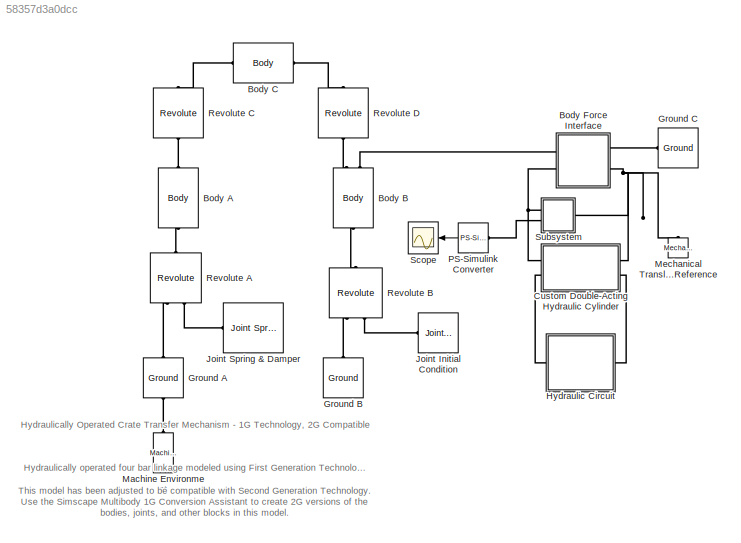
MODEL slx_58357d3a0dcc
KIND model
CONFIG AbsTol = auto
CONFIG FixedStep = auto
CONFIG MaxStep = auto
CONFIG MinStep = auto
CONFIG PostLoadFcn = mech_crate_transfer_param\n
CONFIG RelTol = 1e-3
CONFIG SampleTimeConstraint = Unconstrained
CONFIG Solver = ode15s
CONFIG SolverMode = Auto
CONFIG SolverName = ode15s
CONFIG StartTime = 0.0
CONFIG StopTime = 10.0
WORKSPACE source: MAT-file member
WORKSPACE A_a = 0.05
WORKSPACE A_c = 0.05
BLOCK [Reference] Body A  REF=mblibv1/Bodies/Body
  AttachedToCS = CG
  BodyColor = [1 0 0]
  BodyColorSelMode = MACHINE_DEFAULT
  CG = Left$CG$[0 A_b 0]$CS1$CS1$m$[0 0 0]$Euler X-Y-Z$deg$CS1$false$none
  CGPos = [0 A_b 0]
  CGRot = [0 0 0]
  CS0Pos = []
  CS0Rot = []
  CS10Pos = []
  CS10Rot = []
  CS11Pos = []
  CS11Rot = []
  CS12Pos = []
  CS12Rot = []
  CS13Pos = []
  CS13Rot = []
  CS14Pos = []
  CS14Rot = []
  CS15Pos = []
  CS15Rot = []
  CS16Pos = []
  CS16Rot = []
  CS17Pos = []
  CS17Rot = []
  CS18Pos = []
  CS18Rot = []
  CS19Pos = []
  CS19Rot = []
  CS1Pos = [0 0 0]
  CS1Rot = [0 0 0]
  CS20Pos = []
  CS20Rot = []
  CS2Pos = [0 2*A_b 0]
  CS2Rot = [0 0 0]
  CS3Pos = []
  CS3Rot = []
  CS4Pos = []
  CS4Rot = []
  CS5Pos = []
  CS5Rot = []
  CS6Pos = []
  CS6Rot = []
  CS7Pos = []
  CS7Rot = []
  CS8Pos = []
  CS8Rot = []
  CS9Pos = []
  CS9Rot = []
  ClassName = Body
  Density = 1
  DensityUnits = kg/m^3
  DensityUse = false
  DialogClass = MechanicalBodyBlock
  GraphicsMode = MACHINE_DEFAULT
  Inertia = I_a
  InertiaUnits = kg*m^2
  LConnTagsString = CS1
  Mass = M_a
  MassUnits = kg
  Ports = [0, 0, 0, 0, 0, 1, 1]
  RConnTagsString = CS2
  Shape = Cylinder
  ShapeDims = [1 1]
  ShapeUnits = m
  ShapeUse = false
  SourceBlock = mblibv1/Bodies/Body
  SourceType = Body
  UpdateFromCAD = off
  WorkingFrames = Left$CS1$[0 0 0]$Adjoining$Adjoining$m$[0 0 0]$Euler X-Y-Z$deg$Adjoining$true$none#Right$CS2$[0 2*A_b 0]$CS1$CS1$m$[0 0 0]$Euler X-Y-Z$deg$CS1$true$none
BLOCK [Reference] Body B  REF=mblibv1/Bodies/Body
  AttachedToCS = CG
  BodyColor = [1 0 0]
  BodyColorSelMode = MACHINE_DEFAULT
  CG = Left$CG$[0 A_b 0]$CS1$CS1$m$[0 0 0]$Euler X-Y-Z$deg$CS1$false$none
  CGPos = [0 A_b 0]
  CGRot = [0 0 0]
  CS0Pos = []
  CS0Rot = []
  CS10Pos = []
  CS10Rot = []
  CS11Pos = []
  CS11Rot = []
  CS12Pos = []
  CS12Rot = []
  CS13Pos = []
  CS13Rot = []
  CS14Pos = []
  CS14Rot = []
  CS15Pos = []
  CS15Rot = []
  CS16Pos = []
  CS16Rot = []
  CS17Pos = []
  CS17Rot = []
  CS18Pos = []
  CS18Rot = []
  CS19Pos = []
  CS19Rot = []
  CS1Pos = [0 0 0]
  CS1Rot = [0 0 0]
  CS20Pos = []
  CS20Rot = []
  CS2Pos = [0 2*A_b 0]
  CS2Rot = [0 0 0]
  CS3Pos = [0 0 0]
  CS3Rot = [0 0 0]
  CS4Pos = []
  CS4Rot = []
  CS5Pos = []
  CS5Rot = []
  CS6Pos = []
  CS6Rot = []
  CS7Pos = []
  CS7Rot = []
  CS8Pos = []
  CS8Rot = []
  CS9Pos = []
  CS9Rot = []
  ClassName = Body
  Density = 1
  DensityUnits = kg/m^3
  DensityUse = false
  DialogClass = MechanicalBodyBlock
  GraphicsMode = MACHINE_DEFAULT
  Inertia = I_a
  InertiaUnits = kg*m^2
  LConnTagsString = CS1
  Mass = M_a
  MassUnits = kg
  Ports = [0, 0, 0, 0, 0, 1, 2]
  RConnTagsString = CS2|CS3
  Shape = Cylinder
  ShapeDims = [1 1]
  ShapeUnits = m
  ShapeUse = false
  SourceBlock = mblibv1/Bodies/Body
  SourceType = Body
  UpdateFromCAD = off
  WorkingFrames = Left$CS1$[0 0 0]$Adjoining$Adjoining$m$[0 0 0]$Euler X-Y-Z$deg$Adjoining$true$none#Right$CS2$[0 2*A_b 0]$CS1$CS1$m$[0 0 0]$Euler X-Y-Z$deg$CS1$true$none#Right$CS3$[0 0 0]$CG$CG$m$[0 0 0]$Euler X-Y-Z$deg$CG$true$none
BLOCK [Reference] Body C  REF=mblibv1/Bodies/Body
  AttachedToCS = CG
  BodyColor = [1 0 0]
  BodyColorSelMode = MACHINE_DEFAULT
  CG = Left$CG$[C_a 0 0]$CS1$CS1$m$[0 0 0]$Euler X-Y-Z$deg$CS1$false$none
  CGPos = [C_a 0 0]
  CGRot = [0 0 0]
  CS0Pos = []
  CS0Rot = []
  CS10Pos = []
  CS10Rot = []
  CS11Pos = []
  CS11Rot = []
  CS12Pos = []
  CS12Rot = []
  CS13Pos = []
  CS13Rot = []
  CS14Pos = []
  CS14Rot = []
  CS15Pos = []
  CS15Rot = []
  CS16Pos = []
  CS16Rot = []
  CS17Pos = []
  CS17Rot = []
  CS18Pos = []
  CS18Rot = []
  CS19Pos = []
  CS19Rot = []
  CS1Pos = [0 0 0]
  CS1Rot = [0 0 0]
  CS20Pos = []
  CS20Rot = []
  CS2Pos = [2*C_a 0 0]
  CS2Rot = [0 0 0]
  CS3Pos = []
  CS3Rot = []
  CS4Pos = []
  CS4Rot = []
  CS5Pos = []
  CS5Rot = []
  CS6Pos = []
  CS6Rot = []
  CS7Pos = []
  CS7Rot = []
  CS8Pos = []
  CS8Rot = []
  CS9Pos = []
  CS9Rot = []
  ClassName = Body
  Density = 1
  DensityUnits = kg/m^3
  DensityUse = false
  DialogClass = MechanicalBodyBlock
  GraphicsMode = MACHINE_DEFAULT
  Inertia = I_c
  InertiaUnits = kg*m^2
  LConnTagsString = CS1
  Mass = M_c
  MassUnits = kg
  Ports = [0, 0, 0, 0, 0, 1, 1]
  RConnTagsString = CS2
  Shape = Cylinder
  ShapeDims = [1 1]
  ShapeUnits = m
  ShapeUse = false
  SourceBlock = mblibv1/Bodies/Body
  SourceType = Body
  UpdateFromCAD = off
  WorkingFrames = Left$CS1$[0 0 0]$Adjoining$Adjoining$m$[0 0 0]$Euler X-Y-Z$deg$Adjoining$true$none#Right$CS2$[2*C_a 0 0]$CS1$CS1$m$[0 0 0]$Euler X-Y-Z$deg$CS1$true$none
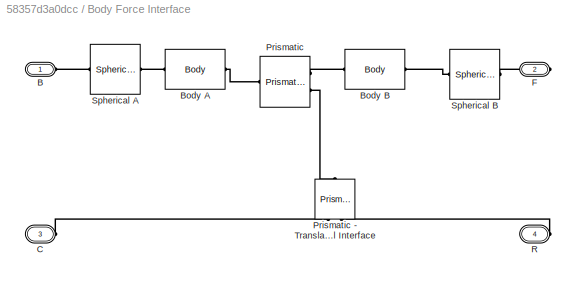
BLOCK [SubSystem] Body Force Interface
  FunctionWithSeparateData = off
  MaskHideContents = off
  MinAlgLoopOccurrences = off
  Opaque = off
  Ports = [0, 0, 0, 0, 0, 2, 2]
  PropExecContextOutsideSubsystem = off
  RTWSystemCode = Auto
  RequestExecContextInheritance = off
BLOCK [PMIOPort] Body Force Interface/B
  Port = 1
  Side = Left
BLOCK [Reference] Body Force Interface/Body A  REF=mblibv1/Bodies/Body
  AttachedToCS = CG
  BodyColor = [1 0 0]
  BodyColorSelMode = MACHINE_DEFAULT
  CG = Left$CG$[sqrt(2)*0.5/2 0 0]$CS1$CS1$m$[0 0 0]$Euler X-Y-Z$deg$CS1$false$none
  CGPos = [sqrt(2)*0.5/2 0 0]
  CGRot = [0 0 0]
  CS0Pos = []
  CS0Rot = []
  CS10Pos = []
  CS10Rot = []
  CS11Pos = []
  CS11Rot = []
  CS12Pos = []
  CS12Rot = []
  CS13Pos = []
  CS13Rot = []
  CS14Pos = []
  CS14Rot = []
  CS15Pos = []
  CS15Rot = []
  CS16Pos = []
  CS16Rot = []
  CS17Pos = []
  CS17Rot = []
  CS18Pos = []
  CS18Rot = []
  CS19Pos = []
  CS19Rot = []
  CS1Pos = [0 0 0]
  CS1Rot = [0 0 45]
  CS20Pos = []
  CS20Rot = []
  CS2Pos = [sqrt(2)*0.5 0 0]
  CS2Rot = [0 90 0]
  CS3Pos = []
  CS3Rot = []
  CS4Pos = []
  CS4Rot = []
  CS5Pos = []
  CS5Rot = []
  CS6Pos = []
  CS6Rot = []
  CS7Pos = []
  CS7Rot = []
  CS8Pos = []
  CS8Rot = []
  CS9Pos = []
  CS9Rot = []
  ClassName = Body
  Density = 1
  DensityUnits = kg/m^3
  DensityUse = false
  DialogClass = MechanicalBodyBlock
  GraphicsMode = MACHINE_DEFAULT
  Inertia = 1e-3*[0.1 0 0;0 3 0; 0 0 3]
  InertiaUnits = kg*m^2
  LConnTagsString = CS1
  Mass = 0.1
  MassUnits = kg
  Ports = [0, 0, 0, 0, 0, 1, 1]
  RConnTagsString = CS2
  Shape = Cylinder
  ShapeDims = [1 1]
  ShapeUnits = m
  ShapeUse = false
  SourceBlock = mblibv1/Bodies/Body
  SourceType = Body
  UpdateFromCAD = off
  WorkingFrames = Left$CS1$[0 0 0]$Adjoining$Adjoining$m$[0 0 45]$Euler X-Y-Z$deg$Adjoining$true$none#Right$CS2$[sqrt(2)*0.5 0 0]$CS1$CS1$m$[0 90 0]$Euler X-Y-Z$deg$CS1$true$none
BLOCK [Reference] Body Force Interface/Body B  REF=mblibv1/Bodies/Body
  AttachedToCS = CG
  BodyColor = [1 0 0]
  BodyColorSelMode = MACHINE_DEFAULT
  CG = Left$CG$[0 0 sqrt(2)*0.5/2]$CS1$CS1$m$[0 -90 0]$Euler X-Y-Z$deg$CS1$false$none
  CGPos = [0 0 sqrt(2)*0.5/2]
  CGRot = [0 -90 0]
  CS0Pos = []
  CS0Rot = []
  CS10Pos = []
  CS10Rot = []
  CS11Pos = []
  CS11Rot = []
  CS12Pos = []
  CS12Rot = []
  CS13Pos = []
  CS13Rot = []
  CS14Pos = []
  CS14Rot = []
  CS15Pos = []
  CS15Rot = []
  CS16Pos = []
  CS16Rot = []
  CS17Pos = []
  CS17Rot = []
  CS18Pos = []
  CS18Rot = []
  CS19Pos = []
  CS19Rot = []
  CS1Pos = [0 0 -sqrt(2)*0.5]
  CS1Rot = [0 0 0]
  CS20Pos = []
  CS20Rot = []
  CS2Pos = [0 0 sqrt(2)*0.5]
  CS2Rot = [0 -90 0]
  CS3Pos = []
  CS3Rot = []
  CS4Pos = []
  CS4Rot = []
  CS5Pos = []
  CS5Rot = []
  CS6Pos = []
  CS6Rot = []
  CS7Pos = []
  CS7Rot = []
  CS8Pos = []
  CS8Rot = []
  CS9Pos = []
  CS9Rot = []
  ClassName = Body
  Density = 1
  DensityUnits = kg/m^3
  DensityUse = false
  DialogClass = MechanicalBodyBlock
  GraphicsMode = MACHINE_DEFAULT
  Inertia = 1e-3*[0.1 0 0;0 3 0; 0 0 3]
  InertiaUnits = kg*m^2
  LConnTagsString = CS1
  Mass = 0.1
  MassUnits = kg
  Ports = [0, 0, 0, 0, 0, 1, 1]
  RConnTagsString = CS2
  Shape = Cylinder
  ShapeDims = [1 1]
  ShapeUnits = m
  ShapeUse = false
  SourceBlock = mblibv1/Bodies/Body
  SourceType = Body
  UpdateFromCAD = off
  WorkingFrames = Left$CS1$[0 0 -sqrt(2)*0.5]$Adjoining$Adjoining$m$[0 0 0]$Euler X-Y-Z$deg$Adjoining$true$none#Right$CS2$[0 0 sqrt(2)*0.5]$CS1$CS1$m$[0 -90 0]$Euler X-Y-Z$deg$CS1$true$none
BLOCK [PMIOPort] Body Force Interface/C
  Port = 3
  Side = Left
BLOCK [PMIOPort] Body Force Interface/F
  Port = 2
  Side = Right
BLOCK [Reference] Body Force Interface/Prismatic  REF=mblibv1/Joints/Prismatic
  ClassName = Joint
  CutJoint = off
  DialogClass = JointBlock
  LConnTagsString = __newl0|SA1
  MarkAsCut = off
  NumSAPorts = 1
  P1Axis = [0 0 1]
  Ports = [0, 0, 0, 0, 0, 2, 1]
  PrimitiveProps = P1$Base$[0 0 1]$prismatic
  Primitives = prismatic
  RConnTagsString = __newr0
  SourceBlock = mblibv1/Joints/Prismatic
  SourceType = Prismatic
  UpdateFromCAD = off
BLOCK [Reference] Body Force Interface/Prismatic - Translational Interface  REF=mblibv1/Interface 
Elements/Prismatic -
Translational
Interface
  ClassName = PrismaticTranslationalInterface
  DialogClass = PrismaticTranslationalInterface
  InputFilterTimeConstant = 0.001
  InputFiltering = off
  Ports = [0, 0, 0, 0, 0, 2, 1]
  Primitive = P1
  SimscapeFilterOrder = 1
  SourceBlock = mblibv1/Interface \nElements/Prismatic -\nTranslational\nInterface
  SourceType = Prismatic - Translational Interface
  UpdateFromCAD = off
BLOCK [PMIOPort] Body Force Interface/R
  Port = 4
  Side = Right
BLOCK [Reference] Body Force Interface/Spherical A   REF=mblibv1/Joints/Spherical
  ClassName = Joint
  CutJoint = off
  DialogClass = JointBlock
  LConnTagsString = __newl0
  MarkAsCut = off
  NumSAPorts = 0
  Ports = [0, 0, 0, 0, 0, 1, 1]
  PrimitiveProps = S$WORLD$[0 0 0]$spherical
  Primitives = spherical
  RConnTagsString = __newr0
  SAxis = [0 0 0]
  SourceBlock = mblibv1/Joints/Spherical
  SourceType = Spherical
  UpdateFromCAD = off
BLOCK [Reference] Body Force Interface/Spherical B  REF=mblibv1/Joints/Spherical
  ClassName = Joint
  CutJoint = off
  DialogClass = JointBlock
  LConnTagsString = __newl0
  MarkAsCut = off
  NumSAPorts = 0
  Ports = [0, 0, 0, 0, 0, 1, 1]
  PrimitiveProps = S$World$[0 0 0]$spherical
  Primitives = spherical
  RConnTagsString = __newr0
  SAxis = [0 0 0]
  SourceBlock = mblibv1/Joints/Spherical
  SourceType = Spherical
  UpdateFromCAD = off
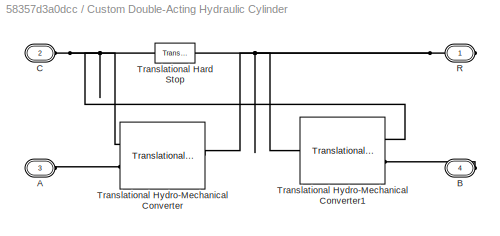
BLOCK [SubSystem] Custom Double-Acting Hydraulic Cylinder
  FunctionWithSeparateData = off
  MaskHideContents = off
  MinAlgLoopOccurrences = off
  Opaque = off
  Ports = [0, 0, 0, 0, 0, 2, 2]
  PropExecContextOutsideSubsystem = off
  RTWSystemCode = Auto
  RequestExecContextInheritance = off
BLOCK [PMIOPort] Custom Double-Acting Hydraulic Cylinder/A
  Port = 3
  Side = Left
  Tag = PMCPort
BLOCK [PMIOPort] Custom Double-Acting Hydraulic Cylinder/B
  Port = 4
  Side = Right
  Tag = PMCPort
BLOCK [PMIOPort] Custom Double-Acting Hydraulic Cylinder/C
  Port = 2
  Side = Left
  Tag = PMCPort
BLOCK [PMIOPort] Custom Double-Acting Hydraulic Cylinder/R
  Port = 1
  Side = Right
  Tag = PMCPort
BLOCK [Reference] Custom Double-Acting Hydraulic Cylinder/Translational Hard Stop  REF=fl_lib/Mechanical/Translational
Elements/Translational Hard
Stop
  ClassName = hardstop_transl
  ComponentPath = foundation.mechanical.translational.hardstop
  ComponentVariantNames = hardstop
  ComponentVariants = foundation.mechanical.translational.hardstop
  D_low = damping
  D_low_unit = N/(m/s)
  D_up = damping
  D_up_unit = N/(m/s)
  LocalVarDescs = |f|v|x
  LocalVarLogging = [0 0 0]
  LocalVarNames = |f|v|x
  Ports = [0, 0, 0, 0, 0, 1, 1]
  SchemaVersion = 1
  SourceBlock = fl_lib/Mechanical/Translational\nElements/Translational Hard\nStop
  SourceFile = foundation.mechanical.translational.hardstop
  SourceType = Translational Hard\nStop
  f_Log = off
  initial_position = 0
  initial_position_unit = m
  lower_bnd = -init_pos
  lower_bnd_unit = m
  stiff_low = stiffness
  stiff_low_unit = N/m
  stiff_up = stiffness
  stiff_up_unit = N/m
  upper_bnd = stroke - init_pos
  upper_bnd_unit = m
  v_Log = off
  x_Log = off
BLOCK [Reference] Custom Double-Acting Hydraulic Cylinder/Translational Hydro-Mechanical Converter  REF=fl_lib/Hydraulic/Hydraulic Elements/Translational
Hydro-Mechanical
Converter
  ClassName = converter_transl
  ComponentPath = foundation.hydraulic.elements.translational_converter
  ComponentVariantNames = translational_converter
  ComponentVariants = foundation.hydraulic.elements.translational_converter
  LocalVarDescs = |f|q
  LocalVarLogging = [0 0]
  LocalVarNames = |f|q
  Ports = [0, 0, 0, 0, 0, 2, 1]
  SchemaVersion = 1
  SourceBlock = fl_lib/Hydraulic/Hydraulic Elements/Translational\nHydro-Mechanical\nConverter
  SourceFile = foundation.hydraulic.elements.translational_converter
  SourceType = Translational\nHydro-Mechanical\nConverter
  area = area_A
  area_unit = m^2
  dir = 1
  dir_unit = 1
  f_Log = off
  or = 1
  or_unit = 1
  q_Log = off
BLOCK [Reference] Custom Double-Acting Hydraulic Cylinder/Translational Hydro-Mechanical Converter1  REF=fl_lib/Hydraulic/Hydraulic Elements/Translational
Hydro-Mechanical
Converter
  ClassName = converter_transl
  ComponentPath = foundation.hydraulic.elements.translational_converter
  ComponentVariantNames = translational_converter
  ComponentVariants = foundation.hydraulic.elements.translational_converter
  LocalVarDescs = |f|q
  LocalVarLogging = [0 0]
  LocalVarNames = |f|q
  Ports = [0, 0, 0, 0, 0, 2, 1]
  SchemaVersion = 1
  SourceBlock = fl_lib/Hydraulic/Hydraulic Elements/Translational\nHydro-Mechanical\nConverter
  SourceFile = foundation.hydraulic.elements.translational_converter
  SourceType = Translational\nHydro-Mechanical\nConverter
  area = area_B
  area_unit = m^2
  dir = 1
  dir_unit = 1
  f_Log = off
  or = 2
  or_unit = 1
  q_Log = off
BLOCK [Reference] Ground A  REF=mblibv1/Bodies/Ground
  ClassName = Ground
  CoordPosition = [0 0 0]
  CoordPositionUnits = m
  DialogClass = GroundBlock
  LeftPortType = env
  MachineId = [1 0]
  ParameterChecksum = [1233882596, 2623182338, 1763440866, 3461614737]
  PhysicalDomain = Mechanical
  Ports = [0, 0, 0, 0, 0, 1, 1]
  RightPortType = workingframe
  ShowEnvPort = on
  SourceBlock = mblibv1/Bodies/Ground
  SourceType = Ground
  StateVectorMgrId = 0
  TopologyChecksum = [903116939, 3767858018, 2363969463, 2006729119]
  UpdateFromCAD = off
  UserDataPersistent = on
BLOCK [Reference] Ground B  REF=mblibv1/Bodies/Ground
  ClassName = Ground
  CoordPosition = [0.5 0 0]
  CoordPositionUnits = m
  DialogClass = GroundBlock
  LeftPortType = env
  MachineId = [0 0]
  ParameterChecksum = [0 0 0 0]
  PhysicalDomain = Mechanical
  Ports = [0, 0, 0, 0, 0, 0, 1]
  RightPortType = workingframe
  ShowEnvPort = off
  SourceBlock = mblibv1/Bodies/Ground
  SourceType = Ground
  StateVectorMgrId = -1
  TopologyChecksum = [0 0 0 0]
  UpdateFromCAD = off
  UserDataPersistent = on
BLOCK [Reference] Ground C  REF=mblibv1/Bodies/Ground
  ClassName = Ground
  CoordPosition = [1 1 0]
  CoordPositionUnits = m
  DialogClass = GroundBlock
  LeftPortType = env
  MachineId = [0 0]
  ParameterChecksum = [0 0 0 0]
  PhysicalDomain = Mechanical
  Ports = [0, 0, 0, 0, 0, 0, 1]
  RightPortType = workingframe
  ShowEnvPort = off
  SourceBlock = mblibv1/Bodies/Ground
  SourceType = Ground
  StateVectorMgrId = -1
  TopologyChecksum = [0 0 0 0]
  UpdateFromCAD = off
  UserDataPersistent = on
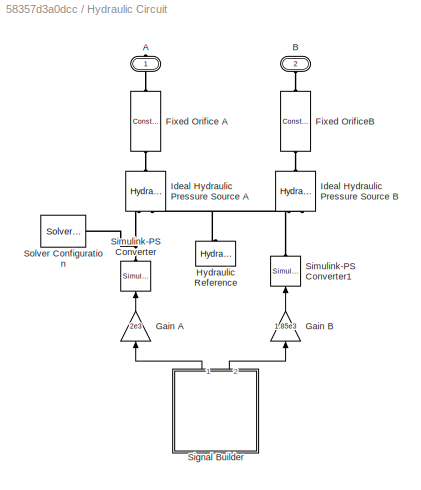
BLOCK [SubSystem] Hydraulic Circuit
  FunctionWithSeparateData = off
  MaskHideContents = off
  MinAlgLoopOccurrences = off
  Opaque = off
  Ports = [0, 0, 0, 0, 0, 1, 1]
  PropExecContextOutsideSubsystem = off
  RTWSystemCode = Auto
  RequestExecContextInheritance = off
BLOCK [PMIOPort] Hydraulic Circuit/A
  Port = 1
  Side = Right
BLOCK [PMIOPort] Hydraulic Circuit/B
  Port = 2
  Side = Left
BLOCK [Reference] Hydraulic Circuit/Fixed Orifice A  REF=fl_lib/Hydraulic/Hydraulic Elements/Constant Area
Hydraulic Orifice
  C_d = 0.7
  C_d_unit = 1
  ClassName = orifice_fixed
  ComponentPath = foundation.hydraulic.elements.constant_area_orifice
  ComponentVariantNames = constant_area_orifice
  ComponentVariants = foundation.hydraulic.elements.constant_area_orifice
  D_h = 0.0113
  D_h_unit = m
  LocalVarDescs = |q|p
  LocalVarLogging = [0 0]
  LocalVarNames = |q|p
  Ports = [0, 0, 0, 0, 0, 1, 1]
  Re_cr = 12
  Re_cr_unit = 1
  SchemaVersion = 1
  SourceBlock = fl_lib/Hydraulic/Hydraulic Elements/Constant Area\nHydraulic Orifice
  SourceFile = foundation.hydraulic.elements.constant_area_orifice
  SourceType = Constant Area\nHydraulic Orifice
  area = 1e-04
  area_unit = m^2
  p_Log = off
  q_Log = off
BLOCK [Reference] Hydraulic Circuit/Fixed OrificeB  REF=fl_lib/Hydraulic/Hydraulic Elements/Constant Area
Hydraulic Orifice
  C_d = 0.7
  C_d_unit = 1
  ClassName = orifice_fixed
  ComponentPath = foundation.hydraulic.elements.constant_area_orifice
  ComponentVariantNames = constant_area_orifice
  ComponentVariants = foundation.hydraulic.elements.constant_area_orifice
  D_h = 0.0113
  D_h_unit = m
  LocalVarDescs = |q|p
  LocalVarLogging = [0 0]
  LocalVarNames = |q|p
  Ports = [0, 0, 0, 0, 0, 1, 1]
  Re_cr = 12
  Re_cr_unit = 1
  SchemaVersion = 1
  SourceBlock = fl_lib/Hydraulic/Hydraulic Elements/Constant Area\nHydraulic Orifice
  SourceFile = foundation.hydraulic.elements.constant_area_orifice
  SourceType = Constant Area\nHydraulic Orifice
  area = 1e-04
  area_unit = m^2
  p_Log = off
  q_Log = off
BLOCK [Gain] Hydraulic Circuit/Gain A
  Gain = 2e3
  OutDataTypeStr = Inherit: Inherit via internal rule
  ParamDataTypeStr = Inherit: Inherit via internal rule
  SaturateOnIntegerOverflow = off
BLOCK [Gain] Hydraulic Circuit/Gain B
  Gain = 1.85e3
  OutDataTypeStr = Inherit: Inherit via internal rule
  ParamDataTypeStr = Inherit: Inherit via internal rule
  SaturateOnIntegerOverflow = off
BLOCK [Reference] Hydraulic Circuit/Hydraulic Reference  REF=fl_lib/Hydraulic/Hydraulic Elements/Hydraulic Reference
  ClassName = hydro_reference
  ComponentPath = foundation.hydraulic.elements.reference
  ComponentVariantNames = reference
  ComponentVariants = foundation.hydraulic.elements.reference
  LocalVarDescs = |q
  LocalVarLogging = 0
  LocalVarNames = |q
  Ports = [0, 0, 0, 0, 0, 1]
  SchemaVersion = 1
  SourceBlock = fl_lib/Hydraulic/Hydraulic Elements/Hydraulic Reference
  SourceFile = foundation.hydraulic.elements.reference
  SourceType = Hydraulic Reference
  q_Log = off
BLOCK [Reference] Hydraulic Circuit/Ideal Hydraulic Pressure Source A  REF=fl_lib/Hydraulic/Hydraulic Sources/Hydraulic Pressure
Source
  ClassName = pressure_src
  ComponentPath = foundation.hydraulic.sources.pressure
  ComponentVariantNames = pressure
  ComponentVariants = foundation.hydraulic.sources.pressure
  LocalVarDescs = |q|p
  LocalVarLogging = [0 0]
  LocalVarNames = |q|p
  Ports = [0, 0, 0, 0, 0, 1, 2]
  SchemaVersion = 1
  SourceBlock = fl_lib/Hydraulic/Hydraulic Sources/Hydraulic Pressure\nSource
  SourceFile = foundation.hydraulic.sources.pressure
  SourceType = Hydraulic Pressure\nSource
  p_Log = off
  q_Log = off
BLOCK [Reference] Hydraulic Circuit/Ideal Hydraulic Pressure Source B  REF=fl_lib/Hydraulic/Hydraulic Sources/Hydraulic Pressure
Source
  ClassName = pressure_src
  ComponentPath = foundation.hydraulic.sources.pressure
  ComponentVariantNames = pressure
  ComponentVariants = foundation.hydraulic.sources.pressure
  LocalVarDescs = |q|p
  LocalVarLogging = [0 0]
  LocalVarNames = |q|p
  Ports = [0, 0, 0, 0, 0, 1, 2]
  SchemaVersion = 1
  SourceBlock = fl_lib/Hydraulic/Hydraulic Sources/Hydraulic Pressure\nSource
  SourceFile = foundation.hydraulic.sources.pressure
  SourceType = Hydraulic Pressure\nSource
  p_Log = off
  q_Log = off
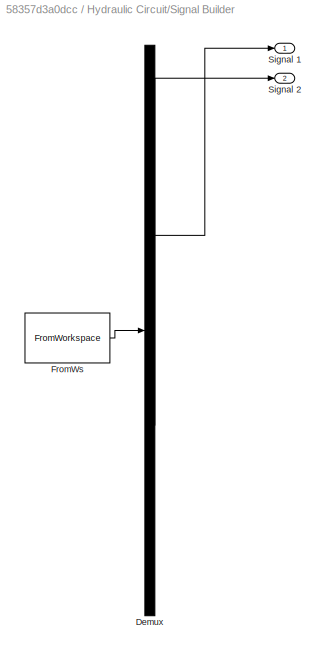
BLOCK [SubSystem] Hydraulic Circuit/Signal Builder
  ClipboardFcn = sigbuilder_block('clipboard');
  CloseFcn = sigbuilder_block('close');
  ContinueFcn = sigbuilder_block('continue')
  CopyFcn = sigbuilder_block('copy');
  DeleteFcn = sigbuilder_block('delete');
  FunctionWithSeparateData = off
  LoadFcn = sigbuilder_block('load');
  MaskHideContents = on
  MinAlgLoopOccurrences = off
  ModelCloseFcn = sigbuilder_block('modelClose');
  NameChangeFcn = sigbuilder_block('namechange');
  Opaque = off
  OpenFcn = sigbuilder_block('open',[388.5 359.25 550.5 371.25 ]);
  PauseFcn = sigbuilder_block('pause')
  Ports = [0, 2]
  PreSaveFcn = sigbuilder_block('preSave');
  PropExecContextOutsideSubsystem = off
  RTWSystemCode = Auto
  RequestExecContextInheritance = off
  StartFcn = sigbuilder_block('start');
  StopFcn = sigbuilder_block('stop');
  Tag = STV Subsys
BLOCK [Demux] Hydraulic Circuit/Signal Builder/Demux
  Outputs = 2
  Ports = [1, 2]
  Tag = STV Demux
BLOCK [FromWorkspace] Hydraulic Circuit/Signal Builder/FromWs
  SampleTime = 0
  Tag = STV FromWs
  VariableName = tuvar
  ZeroCross = on
BLOCK [Outport] Hydraulic Circuit/Signal Builder/Signal 1
  IconDisplay = Port number
  Tag = STV Outport
BLOCK [Outport] Hydraulic Circuit/Signal Builder/Signal 2
  IconDisplay = Port number
  Port = 2
  Tag = STV Outport
BLOCK [Reference] Hydraulic Circuit/Simulink-PS Converter  REF=nesl_utility/Simulink-PS
Converter
  AffineConversion = off
  Frequencies = []
  InputFilterTimeConstant = .001
  InputFiltering = off
  LeftPortType = input
  NoiseDistribution = none
  NoiseParameters = []
  PhysicalDomain = network_engine_domain
  Ports = [1, 0, 0, 0, 0, 0, 1]
  PseudoPeriodic = off
  RightPortType = output
  SimscapeFilterOrder = 1
  SourceBlock = nesl_utility/Simulink-PS\nConverter
  SourceType = Simulink-PS\nConverter
  SubClassName = ps_input
  UdotUserProvided = 0
  Unit = N/m^2
BLOCK [Reference] Hydraulic Circuit/Simulink-PS Converter1  REF=nesl_utility/Simulink-PS
Converter
  AffineConversion = off
  Frequencies = []
  InputFilterTimeConstant = .001
  InputFiltering = off
  LeftPortType = input
  NoiseDistribution = none
  NoiseParameters = []
  PhysicalDomain = network_engine_domain
  Ports = [1, 0, 0, 0, 0, 0, 1]
  PseudoPeriodic = off
  RightPortType = output
  SimscapeFilterOrder = 1
  SourceBlock = nesl_utility/Simulink-PS\nConverter
  SourceType = Simulink-PS\nConverter
  SubClassName = ps_input
  UdotUserProvided = 0
  Unit = N/m^2
BLOCK [Reference] Hydraulic Circuit/Solver Configuration  REF=nesl_utility/Solver
Configuration
  AbsTol = 1e-06
  Accelerate = off
  DelaysMemoryBudget = 1024
  DoDC = off
  DoFixedCost = off
  EnableSwitchedLinearOptims = on
  FrequencyDomain = off
  Harmonics = []
  LeftPortType = input
  LinearAlgebra = Sparse
  LocalSolverChoice = NE_BACKWARD_EULER_ADVANCER
  LocalSolverSampleTime = .001
  MaxModeIter = 2
  MaxNonlinIter = 12
  MinStep = 1e-09
  PhysicalDomain = network_engine_domain
  Ports = [0, 0, 0, 0, 0, 0, 1]
  Profile = off
  RelTol = 0.001
  ResidualTolerance = 1e-9
  RightPortType = generic
  SimulateNoise = off
  SourceBlock = nesl_utility/Solver\nConfiguration
  SourceType = Solver\nConfiguration
  SubClassName = solver
  ToWorkspace = off
  Tones = []
  UseCCode = off
  UseLocalSampling = off
  UseLocalSolver = off
BLOCK [Reference] Joint Initial Condition  REF=mblibv1/Sensors & 
Actuators/Joint Initial Condition
  ClassName = InitialCondition
  DialogClass = InitialConditionBlock
  InitialConditions = P1$false$0$m$deg$0$m/s$deg/s#P2$false$0$m$deg$0$m/s$deg/s#P3$false$0$m$deg$0$m/s$deg/s#R1$true$0$m$rad$0$m/s$deg/s#R2$false$0$m$deg$0$m/s$deg/s#R3$false$0$m$deg$0$m/s$deg/s#S$false$0$m$deg$0$m/s$deg/s
  LeftPortType = blob
  P1PIC = 0
  P1VIC = 0
  P2PIC = 0
  P2VIC = 0
  P3PIC = 0
  P3VIC = 0
  PhysicalDomain = mechanical
  Ports = [0, 0, 0, 0, 0, 0, 1]
  R1PIC = 0
  R1VIC = 0
  R2PIC = 0
  R2VIC = 0
  R3PIC = 0
  R3VIC = 0
  RightPortType = blob
  SPIC = 0
  SVIC = 0
  SourceBlock = mblibv1/Sensors & \nActuators/Joint Initial Condition
  SourceType = Joint Initial Condition
  UpdateFromCAD = off
BLOCK [Reference] Joint Spring & Damper  REF=mblibv1/Force 
Elements/Joint Spring & Damper
  ClassName = JointSpringDamper
  DialogClass = JointSpringDamper
  JFEParameters = P1$false$0$0$0$m$m/s$N$deg$deg/s$N*m#P2$false$0$0$0$m$m/s$N$deg$deg/s$N*m#P3$false$0$0$0$m$m/s$N$deg$deg/s$N*m#R1$true$0$0.02$0$m$m/s$N$rad$deg/s$N*m#R2$false$0$0$0$m$m/s$N$deg$deg/s$N*m#R3$false$0$0$0$m$m/s$N$deg$deg/s$N*m#S$false$0$0$0$m$m/s$N$deg$deg/s$N*m
  Ports = [0, 0, 0, 0, 0, 1]
  SourceBlock = mblibv1/Force \nElements/Joint Spring & Damper
  SourceType = Joint Spring & Damper
  UpdateFromCAD = off
BLOCK [Reference] Machine Environment  REF=mblibv1/Bodies/Machine
Environment
  AnalysisType = Forward dynamics
  AngularAssemblyTolerance = 1e-3
  AngularAssemblyToleranceUnits = rad
  BodyColorSelMode = Use model default
  BodyVisualizationType = Use model default body geometries
  ClassName = Environment
  ConstraintAbsTolerance = 1e-4
  ConstraintRelTolerance = 1e-4
  ConstraintSolverType = Stabilizing
  DefaultBodyColor = [1 0 0]
  DialogTemplateClass = MECH.MachineEnvironment
  Dimensionality = Auto-detect
  Gravity = [0 0 0]
  GravityAsSignal = off
  GravityUnits = m/s^2
  LinearAssemblyTolerance = 1e-3
  LinearAssemblyToleranceUnits = m
  PerturbationSize = 1e-5
  PhysicalDomain = Mechanical
  PortType = env
  Ports = [0, 0, 0, 0, 0, 0, 1]
  RedundancyAnalysisTolerance = 1e-14
  RedundancyAnalysisToleranceType = Automatically select tolerance
  SourceBlock = mblibv1/Bodies/Machine\nEnvironment
  SourceType = Machine Environment
  StatePerturbationType = Fixed
  SyncWhenCopied = off
  Tag = Factory ground
  UseRobustSingularityHandling = off
  VisualizeMachine = on
BLOCK [Reference] Mechanical Translational Reference  REF=fl_lib/Mechanical/Translational
Elements/Mechanical
Translational
Reference
  ClassName = reference_transl
  ComponentPath = foundation.mechanical.translational.reference
  ComponentVariantNames = reference
  ComponentVariants = foundation.mechanical.translational.reference
  LocalVarDescs = |f
  LocalVarLogging = 0
  LocalVarNames = |f
  Ports = [0, 0, 0, 0, 0, 1]
  SchemaVersion = 1
  SourceBlock = fl_lib/Mechanical/Translational\nElements/Mechanical\nTranslational\nReference
  SourceFile = foundation.mechanical.translational.reference
  SourceType = Mechanical\nTranslational\nReference
  f_Log = off
BLOCK [Reference] PS-Simulink Converter  REF=nesl_utility/PS-Simulink
Converter
  AffineConversion = off
  Frequencies = []
  LeftPortType = input
  PhysicalDomain = network_engine_domain
  Ports = [0, 1, 0, 0, 0, 1]
  PseudoPeriodic = off
  RightPortType = output
  SourceBlock = nesl_utility/PS-Simulink\nConverter
  SourceType = PS-Simulink\nConverter
  SubClassName = ps_output
  Unit = 1
BLOCK [Reference] Revolute A  REF=mblibv1/Joints/Revolute
  ClassName = Joint
  CutJoint = off
  DialogClass = JointBlock
  LConnTagsString = __newl0|SA1
  MarkAsCut = off
  NumSAPorts = 1
  Ports = [0, 0, 0, 0, 0, 2, 1]
  PrimitiveProps = R1$Base$[0 0 1]$revolute
  Primitives = prismatic
  R1Axis = [0 0 1]
  RConnTagsString = __newr0
  SourceBlock = mblibv1/Joints/Revolute
  SourceType = Revolute
  UpdateFromCAD = off
BLOCK [Reference] Revolute B  REF=mblibv1/Joints/Revolute
  ClassName = Joint
  CutJoint = off
  DialogClass = JointBlock
  LConnTagsString = __newl0|SA1
  MarkAsCut = off
  NumSAPorts = 1
  Ports = [0, 0, 0, 0, 0, 2, 1]
  PrimitiveProps = R1$Base$[0 0 1]$revolute
  Primitives = prismatic
  R1Axis = [0 0 1]
  RConnTagsString = __newr0
  SourceBlock = mblibv1/Joints/Revolute
  SourceType = Revolute
  UpdateFromCAD = off
BLOCK [Reference] Revolute C  REF=mblibv1/Joints/Revolute
  ClassName = Joint
  CutJoint = off
  DialogClass = JointBlock
  LConnTagsString = __newl0
  MarkAsCut = off
  NumSAPorts = 0
  Ports = [0, 0, 0, 0, 0, 1, 1]
  PrimitiveProps = R1$Base$[0 0 1]$revolute
  Primitives = prismatic
  R1Axis = [0 0 1]
  RConnTagsString = __newr0
  SourceBlock = mblibv1/Joints/Revolute
  SourceType = Revolute
  UpdateFromCAD = off
BLOCK [Reference] Revolute D  REF=mblibv1/Joints/Revolute
  ClassName = Joint
  CutJoint = off
  DialogClass = JointBlock
  LConnTagsString = __newl0
  MarkAsCut = off
  NumSAPorts = 0
  Ports = [0, 0, 0, 0, 0, 1, 1]
  PrimitiveProps = R1$Base$[0 0 1]$revolute
  Primitives = prismatic
  R1Axis = [0 0 1]
  RConnTagsString = __newr0
  SourceBlock = mblibv1/Joints/Revolute
  SourceType = Revolute
  UpdateFromCAD = off
BLOCK [Scope] Scope
  Floating = off
  NumInputPorts = 1
  Ports = [1]
  ShowLegends = off
  TimeRange = 10
  YMax = 0.15
  YMin = -0.05
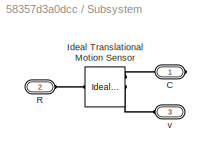
BLOCK [SubSystem] Subsystem
  FunctionWithSeparateData = off
  MaskHideContents = off
  MinAlgLoopOccurrences = off
  Opaque = off
  Ports = [0, 0, 0, 0, 0, 2, 1]
  PropExecContextOutsideSubsystem = off
  RTWSystemCode = Auto
  RequestExecContextInheritance = off
BLOCK [PMIOPort] Subsystem/C
  Port = 1
  Side = Right
BLOCK [Reference] Subsystem/Ideal Translational Motion Sensor  REF=fl_lib/Mechanical/Mechanical Sensors/Ideal Translational
Motion Sensor
  ClassName = velocity
  ComponentPath = foundation.mechanical.sensors.velocity
  ComponentVariantNames = velocity
  ComponentVariants = foundation.mechanical.sensors.velocity
  LocalVarDescs = |v|f|x
  LocalVarLogging = [0 0 0]
  LocalVarNames = |v|f|x
  Ports = [0, 0, 0, 0, 0, 1, 3]
  SchemaVersion = 1
  SourceBlock = fl_lib/Mechanical/Mechanical Sensors/Ideal Translational\nMotion Sensor
  SourceFile = foundation.mechanical.sensors.velocity
  SourceType = Ideal Translational\nMotion Sensor
  f_Log = off
  offset = 0
  offset_unit = m
  v_Log = off
  x_Log = off
BLOCK [PMIOPort] Subsystem/R
  Port = 2
  Side = Left
BLOCK [PMIOPort] Subsystem/v
  Port = 3
  Side = Left
ANNOTATION (root): Hydraulically Operated Crate Transfer Mechanism - 1G Technology, 2G Compatible
ANNOTATION (root): Hydraulically operated four bar linkage modeled using First Generation Technology. This model has been adjusted to be compatible with Second Generation Technology. Use the Simscape Multibody 1G Conversion Assistant to create 2G versions of the bodies, joints, and other blocks in this model.
LINE Hydraulic Circuit/Gain A:1 -> Hydraulic Circuit/Simulink-PS Converter:1
LINE Hydraulic Circuit/Gain B:1 -> Hydraulic Circuit/Simulink-PS Converter1:1
LINE Hydraulic Circuit/Signal Builder/Demux:1 -> Hydraulic Circuit/Signal Builder/Signal 1:1
LINE Hydraulic Circuit/Signal Builder/Demux:2 -> Hydraulic Circuit/Signal Builder/Signal 2:1
LINE Hydraulic Circuit/Signal Builder/FromWs:1 -> Hydraulic Circuit/Signal Builder/Demux:1
LINE Hydraulic Circuit/Signal Builder:1 -> Hydraulic Circuit/Gain A:1
LINE Hydraulic Circuit/Signal Builder:2 -> Hydraulic Circuit/Gain B:1
LINE PS-Simulink Converter:1 -> Scope:1
PLINE Body A:LConn1 -- Revolute A:RConn1
PLINE Body A:RConn1 -- Revolute C:LConn1
PLINE Body B:LConn1 -- Revolute B:RConn1
PLINE Body B:RConn1 -- Revolute D:LConn1
PLINE Body B:RConn2 -- Body Force Interface:LConn1
PLINE Body C:LConn1 -- Revolute C:RConn1
PLINE Body C:RConn1 -- Revolute D:RConn1
PLINE Body Force Interface/B:RConn1 -- Body Force Interface/Spherical A :LConn1
PLINE Body Force Interface/Body A:LConn1 -- Body Force Interface/Spherical A :RConn1
PLINE Body Force Interface/Body A:RConn1 -- Body Force Interface/Prismatic:RConn1
PLINE Body Force Interface/Body B:LConn1 -- Body Force Interface/Prismatic:LConn1
PLINE Body Force Interface/Body B:RConn1 -- Body Force Interface/Spherical B:LConn1
PLINE Body Force Interface/C:RConn1 -- Body Force Interface/Prismatic - Translational Interface:LConn1
PLINE Body Force Interface/F:RConn1 -- Body Force Interface/Spherical B:RConn1
PLINE Body Force Interface/Prismatic - Translational Interface:LConn2 -- Body Force Interface/R:RConn1
PLINE Body Force Interface/Prismatic - Translational Interface:RConn1 -- Body Force Interface/Prismatic:LConn2
PNET net1: Body Force Interface:LConn2 -- Custom Double-Acting Hydraulic Cylinder:LConn1 -- Subsystem:LConn1
PLINE Body Force Interface:RConn1 -- Ground C:RConn1
PNET net2: Body Force Interface:RConn2 -- Custom Double-Acting Hydraulic Cylinder:RConn1 -- Mechanical Translational Reference:LConn1 -- Subsystem:RConn1
PLINE Custom Double-Acting Hydraulic Cylinder/A:RConn1 -- Custom Double-Acting Hydraulic Cylinder/Translational Hydro-Mechanical Converter:LConn2
PLINE Custom Double-Acting Hydraulic Cylinder/B:RConn1 -- Custom Double-Acting Hydraulic Cylinder/Translational Hydro-Mechanical Converter1:LConn2
PNET net3: Custom Double-Acting Hydraulic Cylinder/C:RConn1 -- Custom Double-Acting Hydraulic Cylinder/Translational Hard Stop:RConn1 -- Custom Double-Acting Hydraulic Cylinder/Translational Hydro-Mechanical Converter1:LConn1 -- Custom Double-Acting Hydraulic Cylinder/Translational Hydro-Mechanical Converter:LConn1
PNET net4: Custom Double-Acting Hydraulic Cylinder/R:RConn1 -- Custom Double-Acting Hydraulic Cylinder/Translational Hard Stop:LConn1 -- Custom Double-Acting Hydraulic Cylinder/Translational Hydro-Mechanical Converter1:RConn1 -- Custom Double-Acting Hydraulic Cylinder/Translational Hydro-Mechanical Converter:RConn1
PLINE Custom Double-Acting Hydraulic Cylinder:LConn2 -- Hydraulic Circuit:LConn1
PLINE Custom Double-Acting Hydraulic Cylinder:RConn2 -- Hydraulic Circuit:RConn1
PLINE Ground A:LConn1 -- Machine Environment:RConn1
PLINE Ground A:RConn1 -- Revolute A:LConn1
PLINE Ground B:RConn1 -- Revolute B:LConn1
PLINE Hydraulic Circuit/A:RConn1 -- Hydraulic Circuit/Fixed Orifice A:RConn1
PLINE Hydraulic Circuit/B:RConn1 -- Hydraulic Circuit/Fixed OrificeB:LConn1
PLINE Hydraulic Circuit/Fixed Orifice A:LConn1 -- Hydraulic Circuit/Ideal Hydraulic Pressure Source A:LConn1
PLINE Hydraulic Circuit/Fixed OrificeB:RConn1 -- Hydraulic Circuit/Ideal Hydraulic Pressure Source B:LConn1
PNET net5: Hydraulic Circuit/Hydraulic Reference:LConn1 -- Hydraulic Circuit/Ideal Hydraulic Pressure Source A:RConn2 -- Hydraulic Circuit/Ideal Hydraulic Pressure Source B:RConn2
PNET net6: Hydraulic Circuit/Ideal Hydraulic Pressure Source A:RConn1 -- Hydraulic Circuit/Simulink-PS Converter:RConn1 -- Hydraulic Circuit/Solver Configuration:RConn1
PLINE Hydraulic Circuit/Ideal Hydraulic Pressure Source B:RConn1 -- Hydraulic Circuit/Simulink-PS Converter1:RConn1
PLINE Joint Initial Condition:RConn1 -- Revolute B:LConn2
PLINE Joint Spring & Damper:LConn1 -- Revolute A:LConn2
PLINE PS-Simulink Converter:LConn1 -- Subsystem:LConn2
PLINE Subsystem/C:RConn1 -- Subsystem/Ideal Translational Motion Sensor:RConn1
PLINE Subsystem/Ideal Translational Motion Sensor:LConn1 -- Subsystem/R:RConn1
PLINE Subsystem/Ideal Translational Motion Sensor:RConn2 -- Subsystem/v:RConn1
note: PNET lines group multi-terminal physical nets as a canonical sorted terminal list (undirected conserving connections); 2-terminal nets keep the pairwise PLINE form
